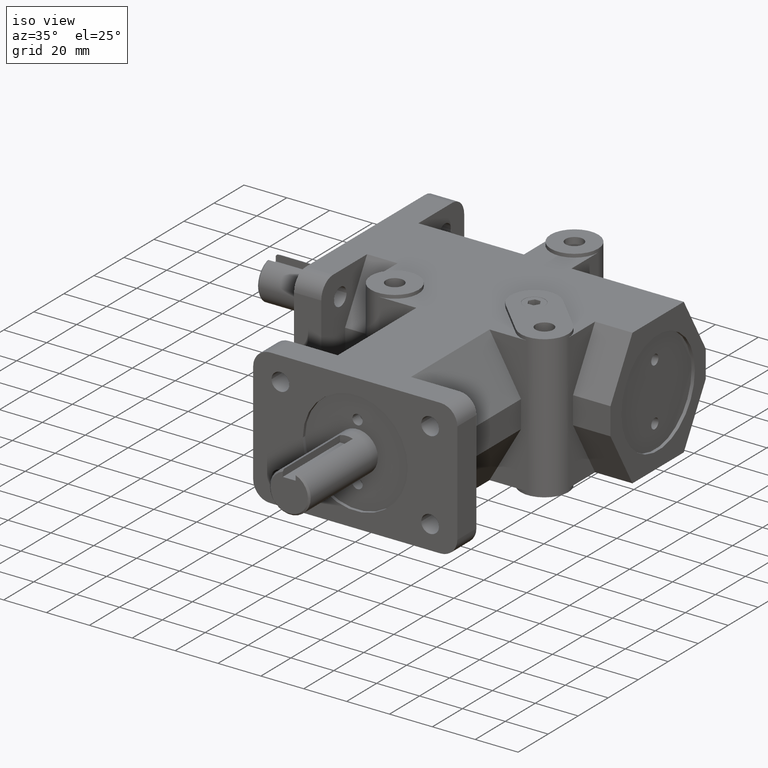
[diagram: clean part render]
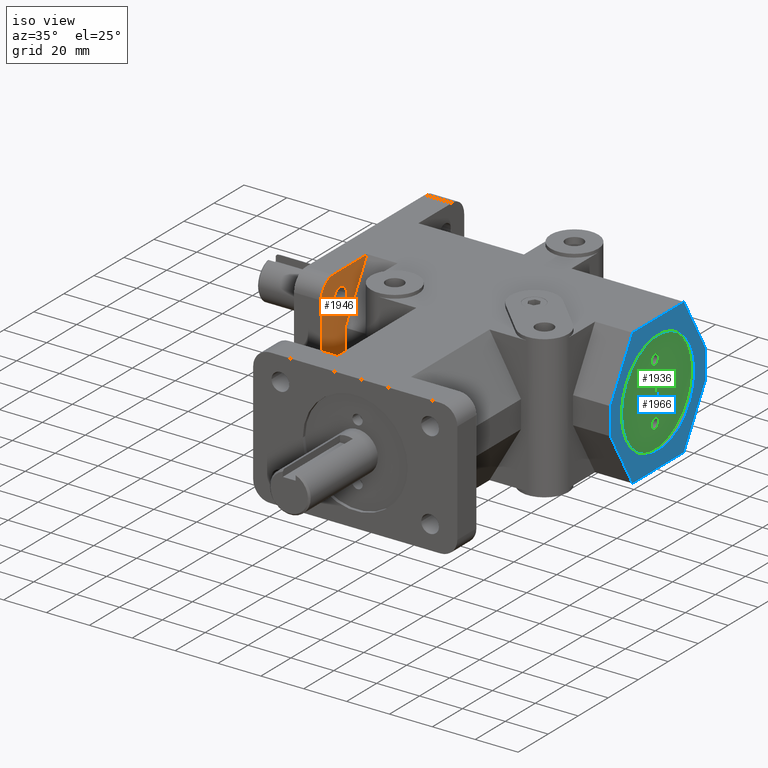
[diagram: same view with three faces highlighted in distinct colors, each labeled with its STEP entity id]
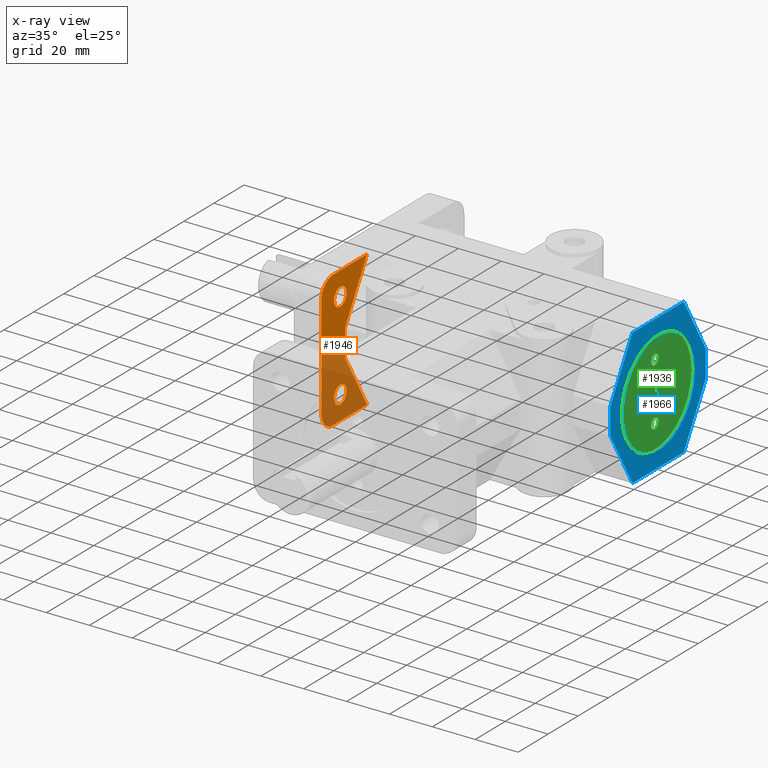
[diagram: x-ray of the same camera — body ghosted, the three highlighted faces saturated]
A machine part, iso view with three faces highlighted in distinct colors.
The next image is the same camera in x-ray (body ghosted, the three faces saturated) — at least one of them is partly hidden behind the body in this view.
Their STEP definitions:

[orange] entity #1946 — the highlighted planar face has unit normal (1, 0, 0).
#28=FACE_BOUND('',#288,.T.);
#29=FACE_BOUND('',#289,.T.);
#71=PLANE('',#2118);
#164=FACE_OUTER_BOUND('',#287,.T.);
#287=EDGE_LOOP('',(#1478,#1479,#1480,#1481,#1482,#1483,#1484,#1485));
#288=EDGE_LOOP('',(#1486));
#289=EDGE_LOOP('',(#1487));
#435=LINE('',#3040,#626);
#436=LINE('',#3042,#627);
#437=LINE('',#3044,#628);
#438=LINE('',#3046,#629);
#439=LINE('',#3047,#630);
#440=LINE('',#3048,#631);
#626=VECTOR('',#2451,1.);
#627=VECTOR('',#2452,1.);
#628=VECTOR('',#2453,1.);
#629=VECTOR('',#2454,1.);
#630=VECTOR('',#2455,1.);
#631=VECTOR('',#2456,1.);
#803=CIRCLE('',#2103,7.874);
#805=CIRCLE('',#2106,7.874);
#814=CIRCLE('',#2119,4.15925);
#815=CIRCLE('',#2120,4.15925);
#911=VERTEX_POINT('',#2993);
#912=VERTEX_POINT('',#2995);
#915=VERTEX_POINT('',#3002);
#916=VERTEX_POINT('',#3004);
#929=VERTEX_POINT('',#3039);
#930=VERTEX_POINT('',#3041);
#931=VERTEX_POINT('',#3043);
#932=VERTEX_POINT('',#3045);
#933=VERTEX_POINT('',#3049);
#934=VERTEX_POINT('',#3051);
#1117=EDGE_CURVE('',#911,#912,#803,.T.);
#1121=EDGE_CURVE('',#915,#916,#805,.T.);
#1139=EDGE_CURVE('',#911,#929,#435,.T.);
#1140=EDGE_CURVE('',#930,#929,#436,.F.);
#1141=EDGE_CURVE('',#931,#930,#437,.T.);
#1142=EDGE_CURVE('',#932,#931,#438,.F.);
#1143=EDGE_CURVE('',#932,#916,#439,.T.);
#1144=EDGE_CURVE('',#915,#912,#440,.T.);
#1145=EDGE_CURVE('',#933,#933,#814,.T.);
#1146=EDGE_CURVE('',#934,#934,#815,.T.);
#1478=ORIENTED_EDGE('',*,*,#1117,.F.);
#1479=ORIENTED_EDGE('',*,*,#1139,.T.);
#1480=ORIENTED_EDGE('',*,*,#1140,.F.);
#1481=ORIENTED_EDGE('',*,*,#1141,.F.);
#1482=ORIENTED_EDGE('',*,*,#1142,.F.);
#1483=ORIENTED_EDGE('',*,*,#1143,.T.);
#1484=ORIENTED_EDGE('',*,*,#1121,.F.);
#1485=ORIENTED_EDGE('',*,*,#1144,.T.);
#1486=ORIENTED_EDGE('',*,*,#1145,.T.);
#1487=ORIENTED_EDGE('',*,*,#1146,.T.);
#1946=ADVANCED_FACE('',(#164,#28,#29),#71,.T.);
#2103=AXIS2_PLACEMENT_3D('',#2996,#2408,#2409);
#2106=AXIS2_PLACEMENT_3D('',#3005,#2416,#2417);
#2118=AXIS2_PLACEMENT_3D('',#3038,#2449,#2450);
#2119=AXIS2_PLACEMENT_3D('',#3050,#2457,#2458);
#2120=AXIS2_PLACEMENT_3D('',#3052,#2459,#2460);
#2408=DIRECTION('center_axis',(-1.,0.,0.));
#2409=DIRECTION('ref_axis',(0.,-0.707106781186547,-0.707106781186548));
#2416=DIRECTION('center_axis',(-1.,0.,0.));
#2417=DIRECTION('ref_axis',(0.,-0.707106781186547,0.707106781186548));
#2449=DIRECTION('center_axis',(1.,0.,0.));
#2450=DIRECTION('ref_axis',(0.,-1.,0.));
#2451=DIRECTION('',(0.,1.,0.));
#2452=DIRECTION('',(0.,-0.499999825156179,0.866025504730542));
#2453=DIRECTION('',(0.,0.,-1.));
#2454=DIRECTION('',(0.,0.499999825156179,0.866025504730542));
#2455=DIRECTION('',(0.,-1.,0.));
#2456=DIRECTION('',(0.,0.,-1.));
#2457=DIRECTION('center_axis',(-1.,0.,0.));
#2458=DIRECTION('ref_axis',(0.,-1.,0.));
#2459=DIRECTION('center_axis',(-1.,0.,0.));
#2460=DIRECTION('ref_axis',(0.,-1.,0.));
#2993=CARTESIAN_POINT('',(-60.325,71.374,-31.75));
#2995=CARTESIAN_POINT('',(-60.325,63.5,-23.876));
#2996=CARTESIAN_POINT('Origin',(-60.325,71.374,-23.876));
#3002=CARTESIAN_POINT('',(-60.325,63.5,23.876));
#3004=CARTESIAN_POINT('',(-60.325,71.374,31.75));
#3005=CARTESIAN_POINT('Origin',(-60.325,71.374,23.876));
#3038=CARTESIAN_POINT('Origin',(-60.325,63.5,0.));
#3039=CARTESIAN_POINT('',(-60.325,94.03969,-31.75));
#3040=CARTESIAN_POINT('',(-60.325,73.1499528726981,-31.75));
#3041=CARTESIAN_POINT('',(-60.325,79.375,-6.35));
#3042=CARTESIAN_POINT('',(-60.325,79.6819838798188,-6.88171192486159));
#3043=CARTESIAN_POINT('',(-60.325,79.375,6.35));
#3044=CARTESIAN_POINT('',(-60.325,79.375,0.));
#3045=CARTESIAN_POINT('',(-60.325,94.03969,31.75));
#3046=CARTESIAN_POINT('',(-60.325,79.6819838798188,6.88171192486159));
#3047=CARTESIAN_POINT('',(-60.325,63.5,31.75));
#3048=CARTESIAN_POINT('',(-60.325,63.5,0.));
#3049=CARTESIAN_POINT('',(-60.325,80.35925,20.6375));
#3050=CARTESIAN_POINT('Origin',(-60.325,76.2,20.6375));
#3051=CARTESIAN_POINT('',(-60.325,80.35925,-20.6375));
#3052=CARTESIAN_POINT('Origin',(-60.325,76.2,-20.6375));

[blue] entity #1966 — the highlighted planar face has unit normal (-1, 0, 0).
#33=FACE_BOUND('',#313,.T.);
#89=PLANE('',#2154);
#184=FACE_OUTER_BOUND('',#312,.T.);
#312=EDGE_LOOP('',(#1624,#1625,#1626,#1627,#1628,#1629,#1630,#1631));
#313=EDGE_LOOP('',(#1632));
#448=LINE('',#3075,#639);
#475=LINE('',#3136,#666);
#501=LINE('',#3200,#692);
#504=LINE('',#3206,#695);
#507=LINE('',#3211,#698);
#509=LINE('',#3215,#700);
#512=LINE('',#3221,#703);
#515=LINE('',#3226,#706);
#639=VECTOR('',#2476,1.);
#666=VECTOR('',#2519,1.);
#692=VECTOR('',#2577,1.);
#695=VECTOR('',#2582,1.);
#698=VECTOR('',#2587,1.);
#700=VECTOR('',#2591,1.);
#703=VECTOR('',#2596,1.);
#706=VECTOR('',#2601,1.);
#768=CIRCLE('',#2039,24.4602);
#853=VERTEX_POINT('',#2821);
#944=VERTEX_POINT('',#3072);
#945=VERTEX_POINT('',#3074);
#970=VERTEX_POINT('',#3133);
#971=VERTEX_POINT('',#3135);
#993=VERTEX_POINT('',#3199);
#995=VERTEX_POINT('',#3205);
#997=VERTEX_POINT('',#3214);
#999=VERTEX_POINT('',#3220);
#1039=EDGE_CURVE('',#853,#853,#768,.T.);
#1157=EDGE_CURVE('',#944,#945,#448,.T.);
#1190=EDGE_CURVE('',#970,#971,#475,.F.);
#1221=EDGE_CURVE('',#945,#993,#501,.T.);
#1224=EDGE_CURVE('',#993,#995,#504,.T.);
#1227=EDGE_CURVE('',#995,#970,#507,.T.);
#1229=EDGE_CURVE('',#971,#997,#509,.T.);
#1232=EDGE_CURVE('',#997,#999,#512,.T.);
#1235=EDGE_CURVE('',#999,#944,#515,.T.);
#1624=ORIENTED_EDGE('',*,*,#1157,.F.);
#1625=ORIENTED_EDGE('',*,*,#1235,.F.);
#1626=ORIENTED_EDGE('',*,*,#1232,.F.);
#1627=ORIENTED_EDGE('',*,*,#1229,.F.);
#1628=ORIENTED_EDGE('',*,*,#1190,.F.);
#1629=ORIENTED_EDGE('',*,*,#1227,.F.);
#1630=ORIENTED_EDGE('',*,*,#1224,.F.);
#1631=ORIENTED_EDGE('',*,*,#1221,.F.);
#1632=ORIENTED_EDGE('',*,*,#1039,.T.);
#1966=ADVANCED_FACE('',(#184,#33),#89,.F.);
#2039=AXIS2_PLACEMENT_3D('',#2822,#2241,#2242);
#2154=AXIS2_PLACEMENT_3D('',#3228,#2603,#2604);
#2241=DIRECTION('center_axis',(-1.,0.,0.));
#2242=DIRECTION('ref_axis',(0.,1.,0.));
#2476=DIRECTION('',(0.,1.,0.));
#2519=DIRECTION('',(0.,1.,0.));
#2577=DIRECTION('',(0.,0.499999825156179,-0.866025504730542));
#2582=DIRECTION('',(0.,0.,-1.));
#2587=DIRECTION('',(0.,-0.499999825156179,-0.866025504730542));
#2591=DIRECTION('',(0.,-0.499999825156179,0.866025504730542));
#2596=DIRECTION('',(0.,0.,1.));
#2601=DIRECTION('',(0.,0.499999825156179,0.866025504730542));
#2603=DIRECTION('center_axis',(-1.,0.,0.));
#2604=DIRECTION('ref_axis',(0.,1.,0.));
#2821=CARTESIAN_POINT('',(63.5,86.6648,2.99551056365041E-15));
#2822=CARTESIAN_POINT('Origin',(63.5,111.125,0.));
#3072=CARTESIAN_POINT('',(63.5,94.03969,31.75));
#3074=CARTESIAN_POINT('',(63.5,128.21031,31.75));
#3075=CARTESIAN_POINT('',(63.5,-18.1175245296725,31.75));
#3133=CARTESIAN_POINT('',(63.5,128.21031,-31.75));
#3135=CARTESIAN_POINT('',(63.5,94.03969,-31.75));
#3136=CARTESIAN_POINT('',(63.5,-18.1175245296725,-31.75));
#3199=CARTESIAN_POINT('',(63.5,142.875,6.35000000000007));
#3200=CARTESIAN_POINT('',(63.5,244.040940797863,-168.874631155907));
#3205=CARTESIAN_POINT('',(63.5,142.875,-6.35000000000004));
#3206=CARTESIAN_POINT('',(63.5,142.875,-311.356307971686));
#3211=CARTESIAN_POINT('',(63.5,-28.3510986897112,-302.922440789315));
#3214=CARTESIAN_POINT('',(63.5,79.375,-6.35));
#3215=CARTESIAN_POINT('',(63.5,193.061150230565,-203.260280125686));
#3220=CARTESIAN_POINT('',(63.5,79.375,6.35));
#3221=CARTESIAN_POINT('',(63.5,79.375,-311.356307971686));
#3226=CARTESIAN_POINT('',(63.5,-79.330889257009,-268.536791819536));
#3228=CARTESIAN_POINT('Origin',(63.5,-119.034954804741,-629.062615943373));

[green] entity #1936 — the highlighted planar face has unit normal (1, 0, 0).
#21=FACE_BOUND('',#271,.T.);
#22=FACE_BOUND('',#272,.T.);
#69=PLANE('',#2088);
#154=FACE_OUTER_BOUND('',#270,.T.);
#270=EDGE_LOOP('',(#1430));
#271=EDGE_LOOP('',(#1431));
#272=EDGE_LOOP('',(#1432));
#769=CIRCLE('',#2040,24.4602);
#786=CIRCLE('',#2075,2.38125);
#788=CIRCLE('',#2078,2.38125);
#854=VERTEX_POINT('',#2823);
#885=VERTEX_POINT('',#2927);
#887=VERTEX_POINT('',#2933);
#1041=EDGE_CURVE('',#854,#854,#769,.T.);
#1087=EDGE_CURVE('',#885,#885,#786,.T.);
#1090=EDGE_CURVE('',#887,#887,#788,.T.);
#1430=ORIENTED_EDGE('',*,*,#1041,.T.);
#1431=ORIENTED_EDGE('',*,*,#1087,.T.);
#1432=ORIENTED_EDGE('',*,*,#1090,.T.);
#1936=ADVANCED_FACE('',(#154,#21,#22),#69,.T.);
#2040=AXIS2_PLACEMENT_3D('',#2825,#2244,#2245);
#2075=AXIS2_PLACEMENT_3D('',#2928,#2339,#2340);
#2078=AXIS2_PLACEMENT_3D('',#2934,#2346,#2347);
#2088=AXIS2_PLACEMENT_3D('',#2952,#2369,#2370);
#2244=DIRECTION('center_axis',(1.,0.,0.));
#2245=DIRECTION('ref_axis',(0.,1.,0.));
#2339=DIRECTION('center_axis',(-1.,0.,0.));
#2340=DIRECTION('ref_axis',(0.,1.,0.));
#2346=DIRECTION('center_axis',(-1.,0.,0.));
#2347=DIRECTION('ref_axis',(0.,1.,0.));
#2369=DIRECTION('center_axis',(1.,0.,0.));
#2370=DIRECTION('ref_axis',(0.,-1.,0.));
#2823=CARTESIAN_POINT('',(61.976,86.6648,2.99551056365041E-15));
#2825=CARTESIAN_POINT('Origin',(61.976,111.125,0.));
#2927=CARTESIAN_POINT('',(61.976,108.74375,-13.462));
#2928=CARTESIAN_POINT('Origin',(61.976,111.125,-13.462));
#2933=CARTESIAN_POINT('',(61.976,108.74375,13.462));
#2934=CARTESIAN_POINT('Origin',(61.976,111.125,13.462));
#2952=CARTESIAN_POINT('Origin',(61.976,112.856818181818,-4.24159109823932E-16));